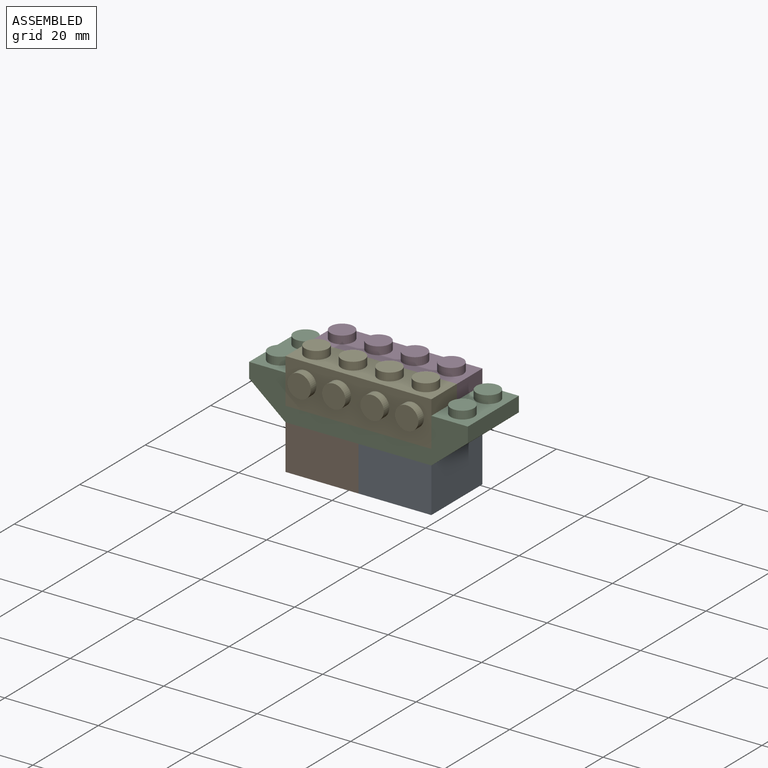
[diagram: assembled view]
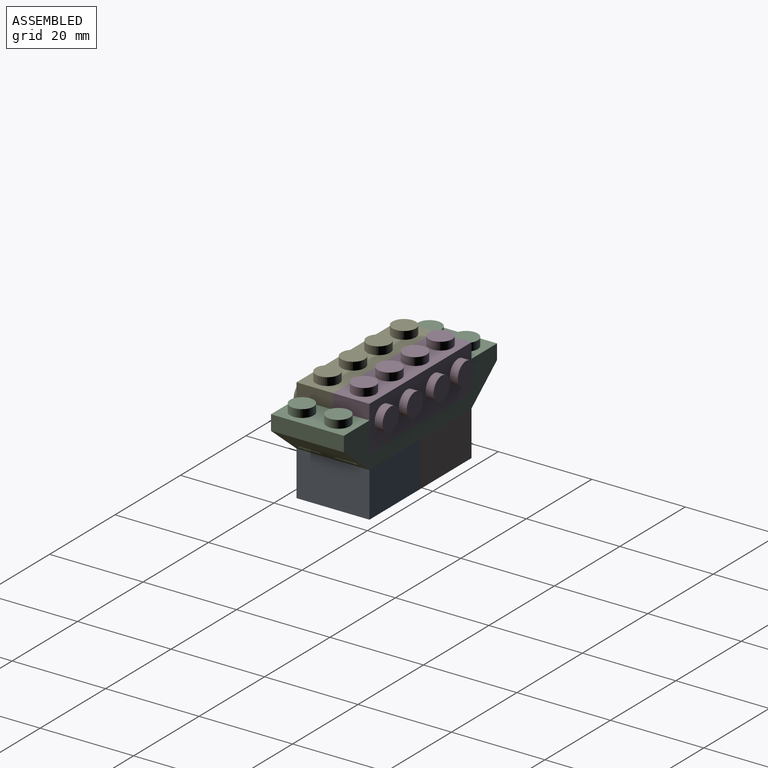
[diagram: assembled view, second angle]
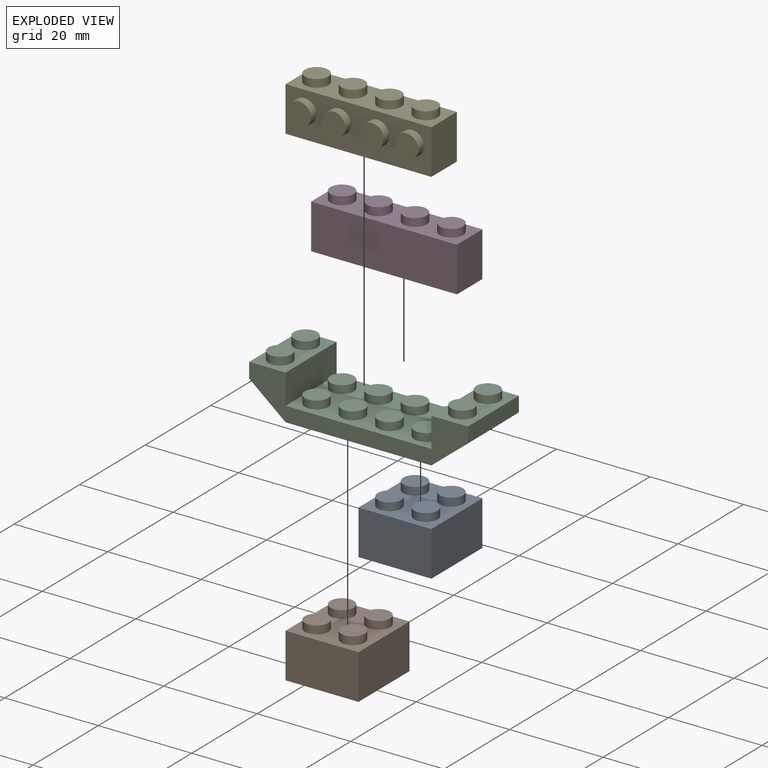
[diagram: exploded view]
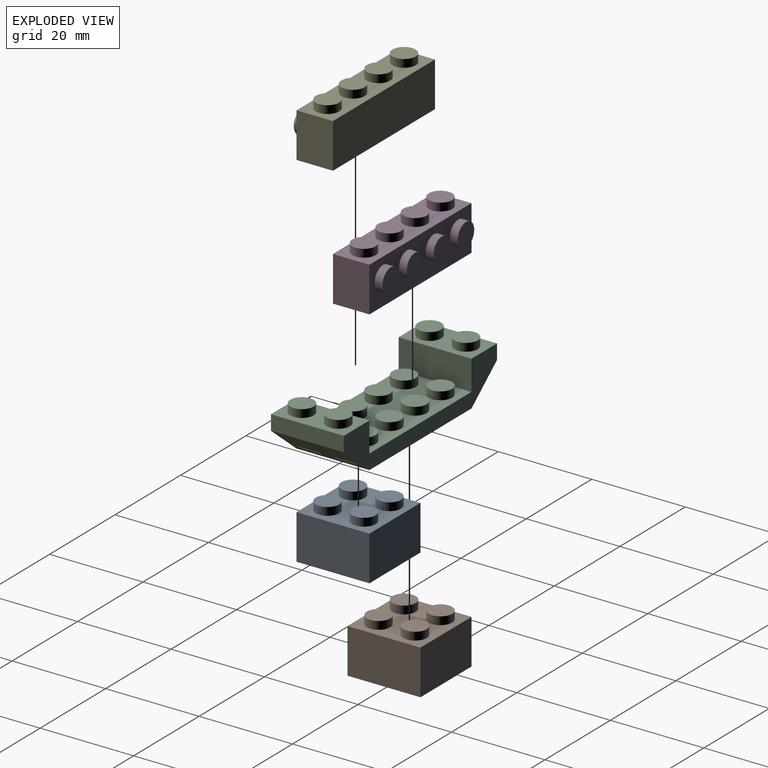
[diagram: exploded view, second angle]
ASSEMBLY  parts=5 mates=4
PART A: 34 faces, bbox 15.6x15.6x11.3 mm
  f0: plane 15.6x15.6mm, normal (0,0,-1), area 143.4mm2, adj f1,f2,f3,f4,f5,f6,f11,f12
  f1: plane 15.6x9.6mm, normal (1,0,0), area 149.8mm2, adj f0,f2,f10,f19
  f2: plane 15.6x9.6mm, normal (0,1,0), area 149.8mm2, adj f0,f1,f10,f11
  f3: plane 5x1.7mm, normal (-1,0,0), area 8.5mm2, adj f0,f4,f6,f7
  f4: plane 5x1.7mm, normal (0,1,0), area 8.5mm2, adj f0,f3,f5,f7
  f5: plane 5x1.7mm, normal (1,0,0), area 8.5mm2, adj f0,f4,f6,f7
  f6: plane 5x1.7mm, normal (0,-1,0), area 8.5mm2, adj f0,f3,f5,f7
  f7: plane 5x5mm, normal (0,0,-1), area 25mm2, adj f3,f4,f5,f6
  f8: cylinder r=2.5mm len=5mm, axis (0,0,-1), area 26.7mm2, adj f9,f10
  f9: plane 5x5mm, normal (0,0,1), area 19.6mm2, adj f8
  f10: plane 15.6x15.6mm, normal (0,0,1), area 164.8mm2, adj f1,f2,f8,f11,f17,f19,f25,f32
  f11: plane 15.6x9.6mm, normal (-1,0,0), area 149.8mm2, adj f0,f2,f10,f19
  f12: plane 5x1.7mm, normal (-1,0,0), area 8.5mm2, adj f0,f13,f15,f16
  f13: plane 5x1.7mm, normal (0,1,0), area 8.5mm2, adj f0,f12,f14,f16
  f14: plane 5x1.7mm, normal (1,0,0), area 8.5mm2, adj f0,f13,f15,f16
  f15: plane 5x1.7mm, normal (0,-1,0), area 8.5mm2, adj f0,f12,f14,f16
  f16: plane 5x5mm, normal (0,0,-1), area 25mm2, adj f12,f13,f14,f15
  f17: cylinder r=2.5mm len=5mm, axis (0,0,-1), area 26.7mm2, adj f10,f18
  f18: plane 5x5mm, normal (0,0,1), area 19.6mm2, adj f17
  f19: plane 15.6x9.6mm, normal (0,-1,0), area 149.8mm2, adj f0,f1,f10,f11
  f20: plane 5x1.7mm, normal (-1,0,0), area 8.5mm2, adj f0,f21,f23,f24
  f21: plane 5x1.7mm, normal (0,1,0), area 8.5mm2, adj f0,f20,f22,f24
  f22: plane 5x1.7mm, normal (1,0,0), area 8.5mm2, adj f0,f21,f23,f24
  f23: plane 5x1.7mm, normal (0,-1,0), area 8.5mm2, adj f0,f20,f22,f24
  f24: plane 5x5mm, normal (0,0,-1), area 25mm2, adj f20,f21,f22,f23
  f25: cylinder r=2.5mm len=5mm, axis (0,0,-1), area 26.7mm2, adj f10,f26
  f26: plane 5x5mm, normal (0,0,1), area 19.6mm2, adj f25
  f27: plane 5x1.7mm, normal (-1,0,0), area 8.5mm2, adj f0,f28,f30,f31
  f28: plane 5x1.7mm, normal (0,1,0), area 8.5mm2, adj f0,f27,f29,f31
  f29: plane 5x1.7mm, normal (1,0,0), area 8.5mm2, adj f0,f28,f30,f31
  f30: plane 5x1.7mm, normal (0,-1,0), area 8.5mm2, adj f0,f27,f29,f31
  f31: plane 5x5mm, normal (0,0,-1), area 25mm2, adj f27,f28,f29,f30
  f32: cylinder r=2.5mm len=5mm, axis (0,0,-1), area 26.7mm2, adj f10,f33
  f33: plane 5x5mm, normal (0,0,1), area 19.6mm2, adj f32
PART B: same geometry as A
PART C: 92 faces, bbox 15.6x46.8x11.3 mm
  f0: plane 31.2x15.6mm, normal (0,0,-1), area 286.7mm2, adj f1,f8,f15,f16,f17,f18,f22,f23
  f1: plane 46.8x9.6mm, normal (1,0,0), area 199.7mm2, adj f0,f2,f3,f69,f82,f83,f88,f89
  f2: plane 15.6x3.2mm, normal (0,1,0), area 49.9mm2, adj f1,f8,f83,f90
  f3: plane 31.2x15.6mm, normal (0,0,1), area 329.6mm2, adj f1,f8,f13,f20,f27,f34,f41,f48
  f4: plane 0.67x0.55mm, normal (-1,0,0), area 0.2mm2, adj f5,f7,f90
  f5: plane 5x0.55mm, normal (0,1,0), area 2.8mm2, adj f4,f6,f7,f90
  f6: plane 0.67x0.55mm, normal (1,0,0), area 0.2mm2, adj f5,f7,f90
  f7: plane 5x0.67mm, normal (0,0,-1), area 3.4mm2, adj f4,f5,f6,f90
  f8: plane 46.8x9.6mm, normal (-1,0,0), area 199.7mm2, adj f0,f2,f3,f69,f82,f83,f88,f89
  f9: plane 0.67x0.55mm, normal (-1,0,0), area 0.2mm2, adj f10,f12,f90
  f10: plane 5x0.55mm, normal (0,1,0), area 2.8mm2, adj f9,f11,f12,f90
  f11: plane 0.67x0.55mm, normal (1,0,0), area 0.2mm2, adj f10,f12,f90
  f12: plane 5x0.67mm, normal (0,0,-1), area 3.4mm2, adj f9,f10,f11,f90
  f13: cylinder r=2.5mm len=5mm, axis (0,0,-1), area 26.7mm2, adj f3,f14
  f14: plane 5x5mm, normal (0,0,1), area 19.6mm2, adj f13
  f15: plane 5x1.7mm, normal (-1,0,0), area 8.5mm2, adj f0,f16,f18,f19
  f16: plane 5x1.7mm, normal (0,1,0), area 8.5mm2, adj f0,f15,f17,f19
  f17: plane 5x1.7mm, normal (1,0,0), area 8.5mm2, adj f0,f16,f18,f19
  f18: plane 5x1.7mm, normal (0,-1,0), area 8.5mm2, adj f0,f15,f17,f19
  f19: plane 5x5mm, normal (0,0,-1), area 25mm2, adj f15,f16,f17,f18
  f20: cylinder r=2.5mm len=5mm, axis (0,0,-1), area 26.7mm2, adj f3,f21
  f21: plane 5x5mm, normal (0,0,1), area 19.6mm2, adj f20
  f22: plane 5x1.7mm, normal (-1,0,0), area 8.5mm2, adj f0,f23,f25,f26
  f23: plane 5x1.7mm, normal (0,1,0), area 8.5mm2, adj f0,f22,f24,f26
  f24: plane 5x1.7mm, normal (1,0,0), area 8.5mm2, adj f0,f23,f25,f26
  f25: plane 5x1.7mm, normal (0,-1,0), area 8.5mm2, adj f0,f22,f24,f26
  f26: plane 5x5mm, normal (0,0,-1), area 25mm2, adj f22,f23,f24,f25
  f27: cylinder r=2.5mm len=5mm, axis (0,0,-1), area 26.7mm2, adj f3,f28
  f28: plane 5x5mm, normal (0,0,1), area 19.6mm2, adj f27
  f29: plane 5x1.7mm, normal (-1,0,0), area 8.5mm2, adj f0,f30,f32,f33
  f30: plane 5x1.7mm, normal (0,1,0), area 8.5mm2, adj f0,f29,f31,f33
  f31: plane 5x1.7mm, normal (1,0,0), area 8.5mm2, adj f0,f30,f32,f33
  f32: plane 5x1.7mm, normal (0,-1,0), area 8.5mm2, adj f0,f29,f31,f33
  f33: plane 5x5mm, normal (0,0,-1), area 25mm2, adj f29,f30,f31,f32
  f34: cylinder r=2.5mm len=5mm, axis (0,0,-1), area 26.7mm2, adj f3,f35
  f35: plane 5x5mm, normal (0,0,1), area 19.6mm2, adj f34
  f36: plane 5x1.7mm, normal (-1,0,0), area 8.5mm2, adj f0,f37,f39,f40
  f37: plane 5x1.7mm, normal (0,1,0), area 8.5mm2, adj f0,f36,f38,f40
  f38: plane 5x1.7mm, normal (1,0,0), area 8.5mm2, adj f0,f37,f39,f40
  f39: plane 5x1.7mm, normal (0,-1,0), area 8.5mm2, adj f0,f36,f38,f40
  f40: plane 5x5mm, normal (0,0,-1), area 25mm2, adj f36,f37,f38,f39
  f41: cylinder r=2.5mm len=5mm, axis (0,0,-1), area 26.7mm2, adj f3,f42
  f42: plane 5x5mm, normal (0,0,1), area 19.6mm2, adj f41
  f43: plane 5x1.7mm, normal (-1,0,0), area 8.5mm2, adj f0,f44,f46,f47
  f44: plane 5x1.7mm, normal (0,1,0), area 8.5mm2, adj f0,f43,f45,f47
  f45: plane 5x1.7mm, normal (1,0,0), area 8.5mm2, adj f0,f44,f46,f47
  f46: plane 5x1.7mm, normal (0,-1,0), area 8.5mm2, adj f0,f43,f45,f47
  f47: plane 5x5mm, normal (0,0,-1), area 25mm2, adj f43,f44,f45,f46
  f48: cylinder r=2.5mm len=5mm, axis (0,0,-1), area 26.7mm2, adj f3,f49
  f49: plane 5x5mm, normal (0,0,1), area 19.6mm2, adj f48
  f50: plane 5x1.7mm, normal (-1,0,0), area 8.5mm2, adj f0,f51,f53,f54
  f51: plane 5x1.7mm, normal (0,1,0), area 8.5mm2, adj f0,f50,f52,f54
  f52: plane 5x1.7mm, normal (1,0,0), area 8.5mm2, adj f0,f51,f53,f54
  f53: plane 5x1.7mm, normal (0,-1,0), area 8.5mm2, adj f0,f50,f52,f54
  f54: plane 5x5mm, normal (0,0,-1), area 25mm2, adj f50,f51,f52,f53
  f55: cylinder r=2.5mm len=5mm, axis (0,0,-1), area 26.7mm2, adj f3,f56
  f56: plane 5x5mm, normal (0,0,1), area 19.6mm2, adj f55
  f57: plane 5x1.7mm, normal (-1,0,0), area 8.5mm2, adj f0,f58,f60,f61
  f58: plane 5x1.7mm, normal (0,1,0), area 8.5mm2, adj f0,f57,f59,f61
  f59: plane 5x1.7mm, normal (1,0,0), area 8.5mm2, adj f0,f58,f60,f61
  f60: plane 5x1.7mm, normal (0,-1,0), area 8.5mm2, adj f0,f57,f59,f61
  f61: plane 5x5mm, normal (0,0,-1), area 25mm2, adj f57,f58,f59,f60
  f62: cylinder r=2.5mm len=5mm, axis (0,0,-1), area 26.7mm2, adj f3,f63
  f63: plane 5x5mm, normal (0,0,1), area 19.6mm2, adj f62
  f64: plane 5x1.7mm, normal (-1,0,0), area 8.5mm2, adj f0,f65,f67,f68
  f65: plane 5x1.7mm, normal (0,1,0), area 8.5mm2, adj f0,f64,f66,f68
  f66: plane 5x1.7mm, normal (1,0,0), area 8.5mm2, adj f0,f65,f67,f68
  f67: plane 5x1.7mm, normal (0,-1,0), area 8.5mm2, adj f0,f64,f66,f68
  f68: plane 5x5mm, normal (0,0,-1), area 25mm2, adj f64,f65,f66,f67
  f69: plane 15.6x3.2mm, normal (0,-1,0), area 49.9mm2, adj f1,f8,f89,f91
  f70: plane 0.67x0.55mm, normal (-1,0,0), area 0.2mm2, adj f72,f73,f91
  f71: plane 0.67x0.55mm, normal (1,0,0), area 0.2mm2, adj f72,f73,f91
  f72: plane 5x0.55mm, normal (0,-1,0), area 2.8mm2, adj f70,f71,f73,f91
  f73: plane 5x0.67mm, normal (0,0,-1), area 3.4mm2, adj f70,f71,f72,f91
  f74: plane 0.67x0.55mm, normal (-1,0,0), area 0.2mm2, adj f76,f77,f91
  f75: plane 0.67x0.55mm, normal (1,0,0), area 0.2mm2, adj f76,f77,f91
  f76: plane 5x0.55mm, normal (0,-1,0), area 2.8mm2, adj f74,f75,f77,f91
  f77: plane 5x0.67mm, normal (0,0,-1), area 3.4mm2, adj f74,f75,f76,f91
  f78: cylinder r=2.5mm len=5mm, axis (0,0,-1), area 26.7mm2, adj f79,f83
  f79: plane 5x5mm, normal (0,0,1), area 19.6mm2, adj f78
  f80: cylinder r=2.5mm len=5mm, axis (0,0,-1), area 26.7mm2, adj f81,f83
  f81: plane 5x5mm, normal (0,0,1), area 19.6mm2, adj f80
  f82: plane 15.6x6.4mm, normal (0,-1,0), area 99.8mm2, adj f1,f3,f8,f83
  f83: plane 15.6x7.8mm, normal (0,0,1), area 82.4mm2, adj f1,f2,f8,f78,f80,f82
  f84: cylinder r=2.5mm len=5mm, axis (0,0,-1), area 26.7mm2, adj f85,f89
  f85: plane 5x5mm, normal (0,0,1), area 19.6mm2, adj f84
  f86: cylinder r=2.5mm len=5mm, axis (0,0,-1), area 26.7mm2, adj f87,f89
  f87: plane 5x5mm, normal (0,0,1), area 19.6mm2, adj f86
  f88: plane 15.6x6.4mm, normal (0,1,0), area 99.8mm2, adj f1,f3,f8,f89
  f89: plane 15.6x7.8mm, normal (0,0,1), area 82.4mm2, adj f1,f8,f69,f84,f86,f88
  f90: plane 15.6x7.8mm, normal (0,0.63,-0.77), area 148.7mm2, adj f0,f1,f2,f4,f5,f6,f7,f8
  f91: plane 15.6x7.8mm, normal (0,-0.63,-0.77), area 148.7mm2, adj f0,f1,f8,f69,f70,f71,f72,f73
PART D: 42 faces, bbox 31.2x9.5x11.3 mm
  f0: plane 31.2x7.8mm, normal (0,0,-1), area 143.4mm2, adj f1,f2,f3,f4,f5,f6,f7,f9
  f1: plane 9.6x7.8mm, normal (1,0,0), area 74.9mm2, adj f0,f2,f3,f18
  f2: plane 31.2x9.6mm, normal (0,1,0), area 299.5mm2, adj f0,f1,f18,f28
  f3: plane 31.2x9.6mm, normal (0,-1,0), area 221mm2, adj f0,f1,f18,f19,f21,f28,f38,f40
  f4: plane 5x1.7mm, normal (-1,0,0), area 8.5mm2, adj f0,f5,f7,f8
  f5: plane 5x1.7mm, normal (0,1,0), area 8.5mm2, adj f0,f4,f6,f8
  f6: plane 5x1.7mm, normal (1,0,0), area 8.5mm2, adj f0,f5,f7,f8
  f7: plane 5x1.7mm, normal (0,-1,0), area 8.5mm2, adj f0,f4,f6,f8
  f8: plane 5x5mm, normal (0,0,-1), area 25mm2, adj f4,f5,f6,f7
  f9: plane 5x1.7mm, normal (-1,0,0), area 8.5mm2, adj f0,f10,f12,f13
  f10: plane 5x1.7mm, normal (0,1,0), area 8.5mm2, adj f0,f9,f11,f13
  f11: plane 5x1.7mm, normal (1,0,0), area 8.5mm2, adj f0,f10,f12,f13
  f12: plane 5x1.7mm, normal (0,-1,0), area 8.5mm2, adj f0,f9,f11,f13
  f13: plane 5x5mm, normal (0,0,-1), area 25mm2, adj f9,f10,f11,f12
  f14: cylinder r=2.5mm len=5mm, axis (0,0,-1), area 26.7mm2, adj f15,f18
  f15: plane 5x5mm, normal (0,0,1), area 19.6mm2, adj f14
  f16: cylinder r=2.5mm len=5mm, axis (0,0,-1), area 26.7mm2, adj f17,f18
  f17: plane 5x5mm, normal (0,0,1), area 19.6mm2, adj f16
  f18: plane 31.2x7.8mm, normal (0,0,1), area 164.8mm2, adj f1,f2,f3,f14,f16,f28,f34,f36
  f19: cylinder r=2.5mm len=5mm, axis (0,1,0), area 26.7mm2, adj f3,f20
  f20: plane 5x5mm, normal (0,-1,0), area 19.6mm2, adj f19
  f21: cylinder r=2.5mm len=5mm, axis (0,1,0), area 26.7mm2, adj f3,f22
  f22: plane 5x5mm, normal (0,-1,0), area 19.6mm2, adj f21
  f23: plane 5x1.7mm, normal (-1,0,0), area 8.5mm2, adj f0,f24,f26,f27
  f24: plane 5x1.7mm, normal (0,1,0), area 8.5mm2, adj f0,f23,f25,f27
  f25: plane 5x1.7mm, normal (1,0,0), area 8.5mm2, adj f0,f24,f26,f27
  f26: plane 5x1.7mm, normal (0,-1,0), area 8.5mm2, adj f0,f23,f25,f27
  f27: plane 5x5mm, normal (0,0,-1), area 25mm2, adj f23,f24,f25,f26
  f28: plane 9.6x7.8mm, normal (-1,0,0), area 74.9mm2, adj f0,f2,f3,f18
  f29: plane 5x1.7mm, normal (-1,0,0), area 8.5mm2, adj f0,f30,f32,f33
  f30: plane 5x1.7mm, normal (0,1,0), area 8.5mm2, adj f0,f29,f31,f33
  f31: plane 5x1.7mm, normal (1,0,0), area 8.5mm2, adj f0,f30,f32,f33
  f32: plane 5x1.7mm, normal (0,-1,0), area 8.5mm2, adj f0,f29,f31,f33
  f33: plane 5x5mm, normal (0,0,-1), area 25mm2, adj f29,f30,f31,f32
  f34: cylinder r=2.5mm len=5mm, axis (0,0,-1), area 26.7mm2, adj f18,f35
  f35: plane 5x5mm, normal (0,0,1), area 19.6mm2, adj f34
  f36: cylinder r=2.5mm len=5mm, axis (0,0,-1), area 26.7mm2, adj f18,f37
  f37: plane 5x5mm, normal (0,0,1), area 19.6mm2, adj f36
  f38: cylinder r=2.5mm len=5mm, axis (0,1,0), area 26.7mm2, adj f3,f39
  f39: plane 5x5mm, normal (0,-1,0), area 19.6mm2, adj f38
  f40: cylinder r=2.5mm len=5mm, axis (0,1,0), area 26.7mm2, adj f3,f41
  f41: plane 5x5mm, normal (0,-1,0), area 19.6mm2, adj f40
PART E: same geometry as D
PLACE A t=(-15.53,-15.59,-31.23)mm
PLACE B t=(-31.13,-15.59,-31.23)mm
PLACE C rot(axis=(0,0,1),90deg) t=(-46.73,-15.59,-21.63)mm
PLACE D rot(axis=(0,0,1),180deg) t=(-38.93,-15.59,-18.43)mm
PLACE E t=(-15.53,-23.39,-18.43)mm
MATE fastened A.f17 <-> C.f41  axis (0,0,1) through (-23.33,-15.59,-19.93)mm
MATE fastened B.f17 <-> C.f13  axis (0,0,1) through (-38.93,-15.59,-19.93)mm
MATE fastened C.f20 <-> E.f36  axis (0,0,1) through (-38.93,-23.39,-16.73)mm
MATE fastened C.f13 <-> D.f14  axis (0,0,1) through (-38.93,-15.59,-16.73)mm
